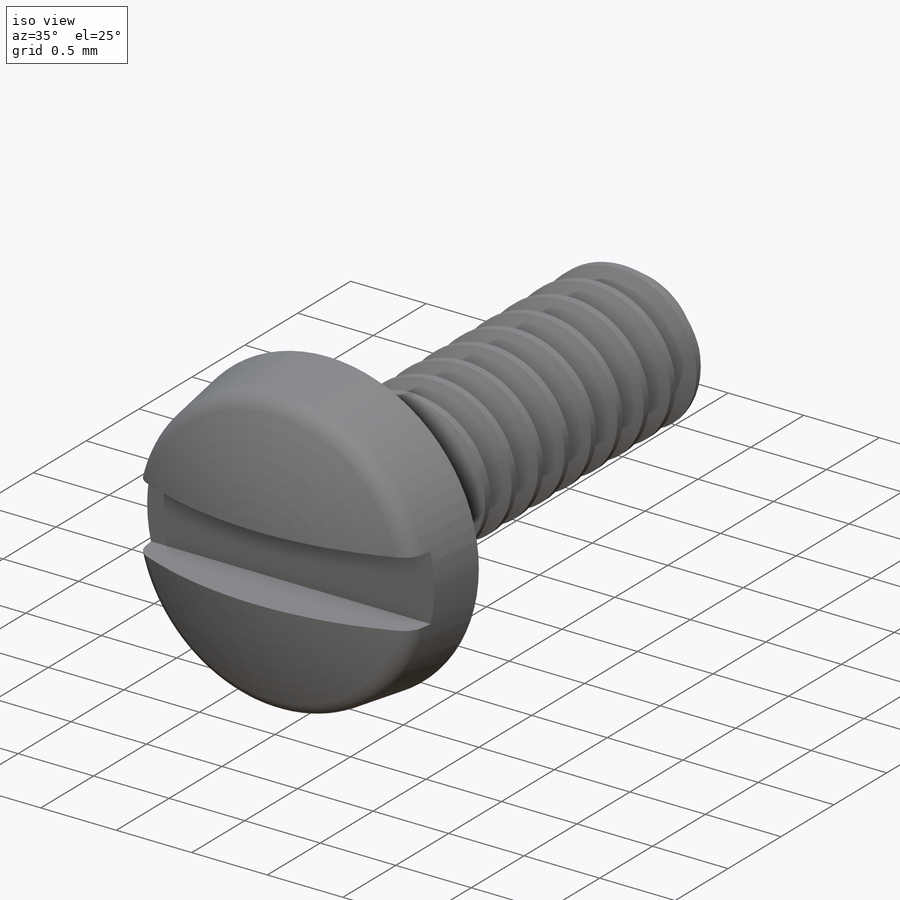
[diagram: iso view]
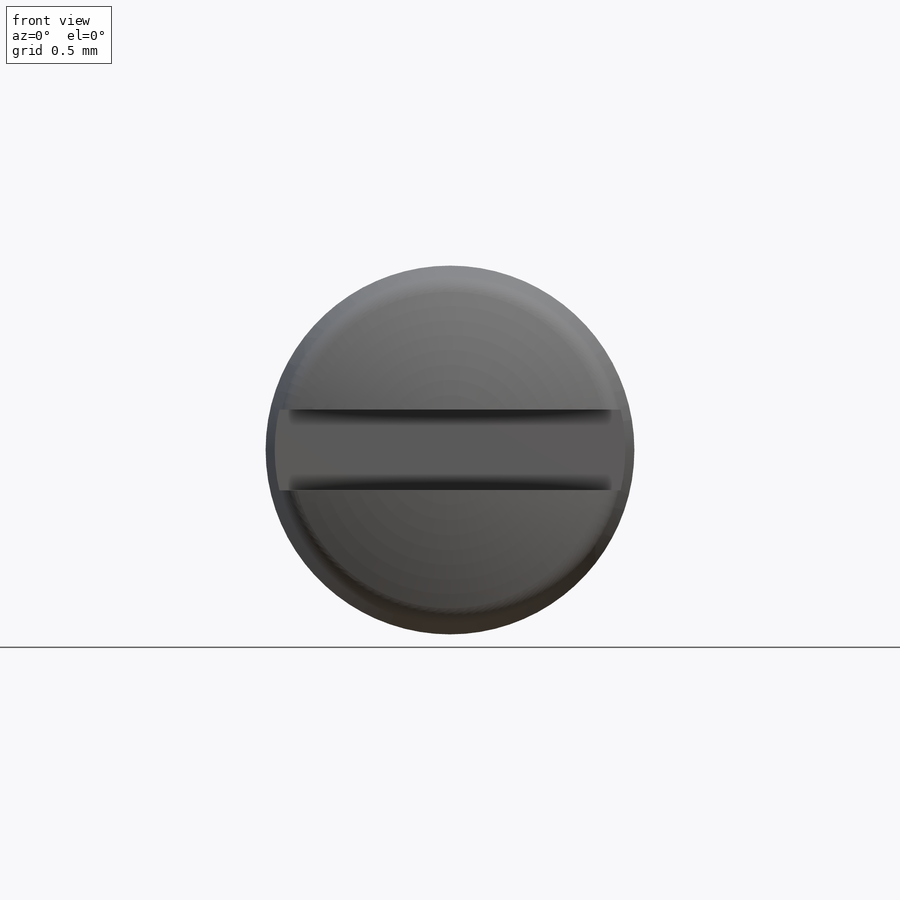
[diagram: front view]
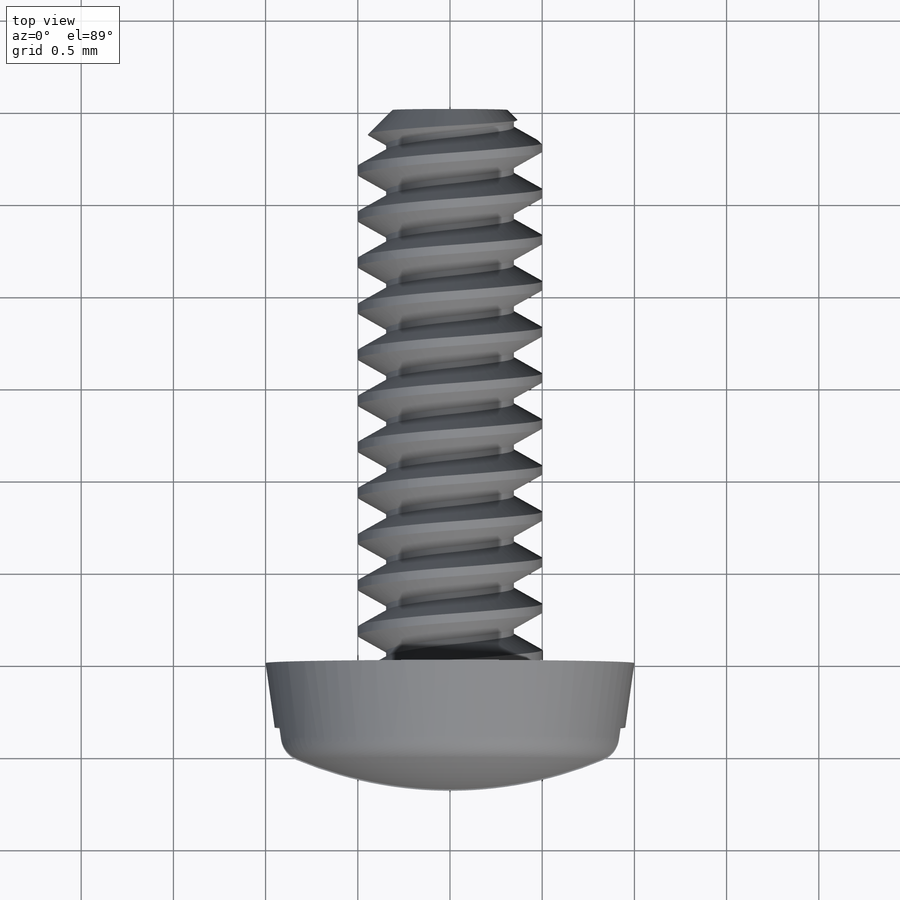
[diagram: top view]
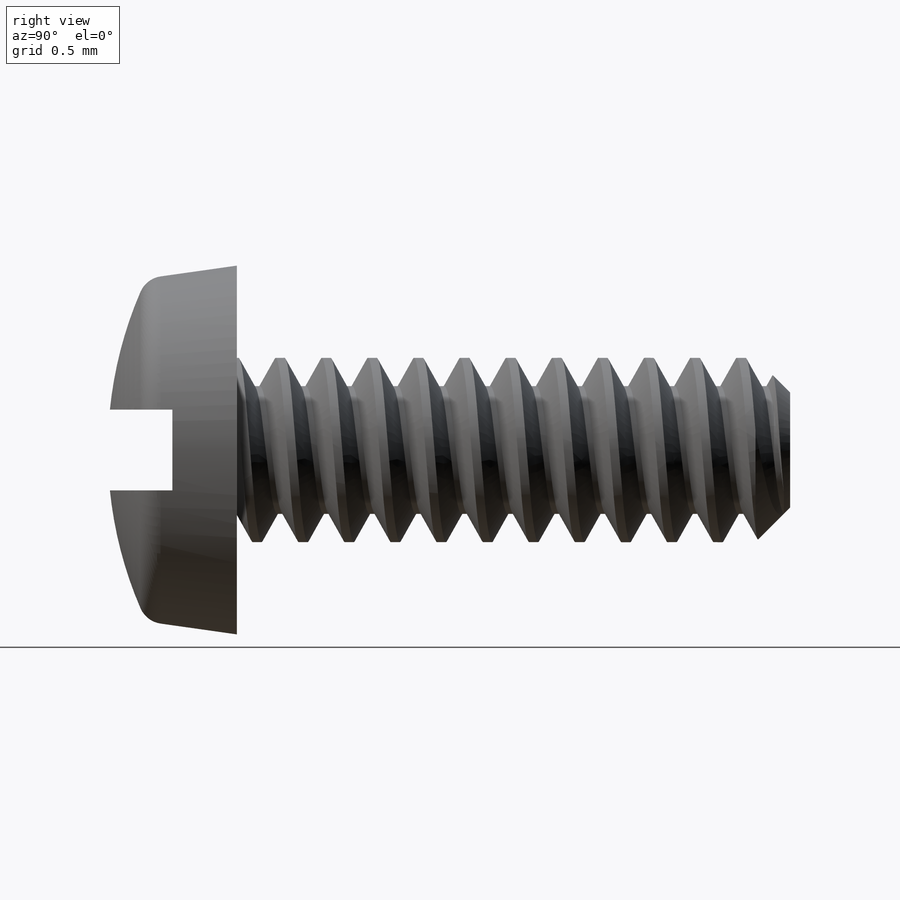
[diagram: right view]
SOLIDWORKS PART (.sldprt)
format: sldprt  version: not decoded by parser v0  size: 932,352 bytes
history: native  units: mm
features: sketch x8, extrude x2, plane x2, material x1, cut_revolve x1, revolve x1, helix x1, chamfer x1, sweep x1, cut_extrude x1 (+12 scaffold rows collapsed; 1 parser-record rows omitted)
feature tree (32):
  scaffold x12  (default folders/planes/origin — collapsed)
  material  "Material <not specified>"
  sketch  "Sketch1"  dims[Washer OD=8.3312mm Head Dia=2.0mm Hex=6.35mm D1=~9.782885mm]
  extrude  "Extrude3"  Depth=0.7mm Head Ht=0.7mm
  sketch  "Sketch11"  dims[c1.D2=0.889mm c1.D4=~1.889125mm c2.D2=~1.889125mm c2.D1=0.254mm c3.D2=~1.642533mm c3.D3=~1.947333mm c4.D2=~1.66218mm c5.D2=5.0deg c5.D1=~3.294374mm c6.D1=82.0deg c6.D2=0.254mm c6.D3=0.254mm c6.dia=2.1844mm c7.D1=0.4445mm c7.D5=0.04mm c8.D1=4.445mm c9.D1=7.0deg c9.D2=0.21mm c9.D4=~2.636907mm c10.D4=8.0deg]
  cut_revolve  "Cut-Revolve3"  Angle=360deg
  sketch  "Sketch4"  dims[c1.Screw Dia=9.525mm c1.Screw Length=12.7mm c1.Drill Length=~7.14375mm c1.D1=~1.417672mm c2.D1=45.0deg c2.Body Length=44.958mm c2.Screw Length=12.7mm c3.Screw Length=25.4mm c3.D1=90.0deg c4.Screw Length=50.8mm c4.Length=~39.600133mm c4.dia=7.9248mm c4.length=50.8mm c5.length=6.35mm c6.length=76.2mm c7.length=3.0mm c7.dia=1.0mm]
  revolve  "Revolve1"  Angle=360deg
  sketch  "Sketch13"  dims[D1=0.0mm]
  helix  "Helix/Spiral1"  Pitch=3mm
  chamfer  "Chamfer2"  Distance=0.1875mm Angle=45deg
  sketch  "Sketch14"  dims[c1.D1=~0.03125mm c1.D2=~2.089547mm c2.D2=58.0deg c2.D3=0.125mm c2.D4=~0.015625mm]
  sweep  "Cut-Sweep1"
  plane  "Plane1"  Offset=38.1mm
  parser-record x1  (decoder bookkeeping rows leaked as tree rows — omitted from the tree; the rows remain in map.json)
  sketch  "Sketch29"
  extrude  "Extrude11"  [1 undecoded]
  plane  "Plane2"
  sketch  "Sketch32"  dims[c1.slot dia=7.0mm c1.D1=45.0deg c1.D2=22.5deg c1.slot w=1.8mm c1.D5=~1.773601mm c2.D5=90.0deg c2.D1=0.4375mm]
  cut_extrude  "Extrude16"  Depth=0.35mm
  sketch  "Sketch18"  dims[D1=0.25mm D2=0.375mm]
decode coverage: 13 of 16 modeling features carry decoded parameters
note: ~ marks probable driven/reference dimensions
note: 1 parameter value undecoded
note: suppression state not decoded; provenance and decode notes live in map.json
